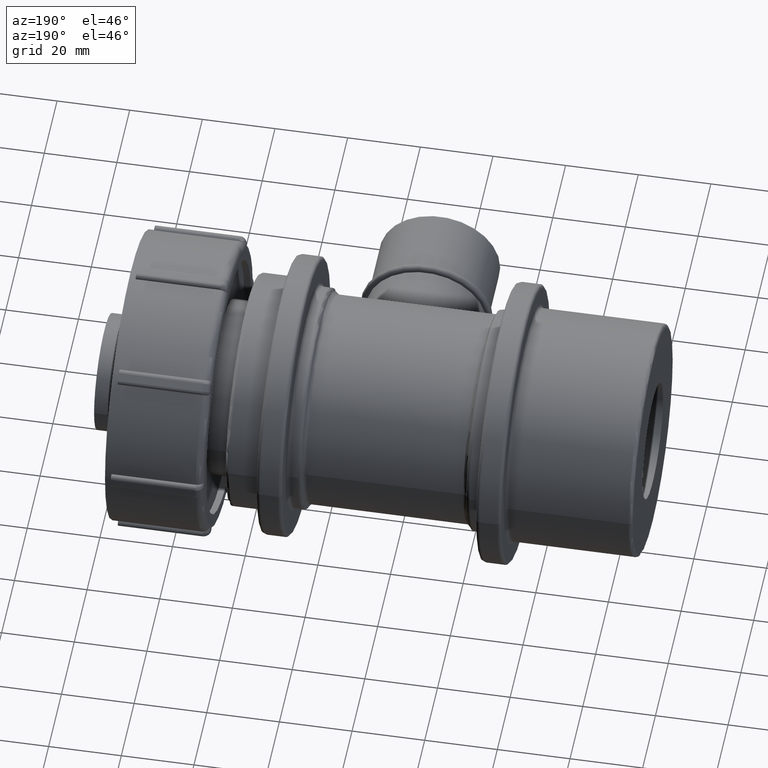
[diagram: clean part render]
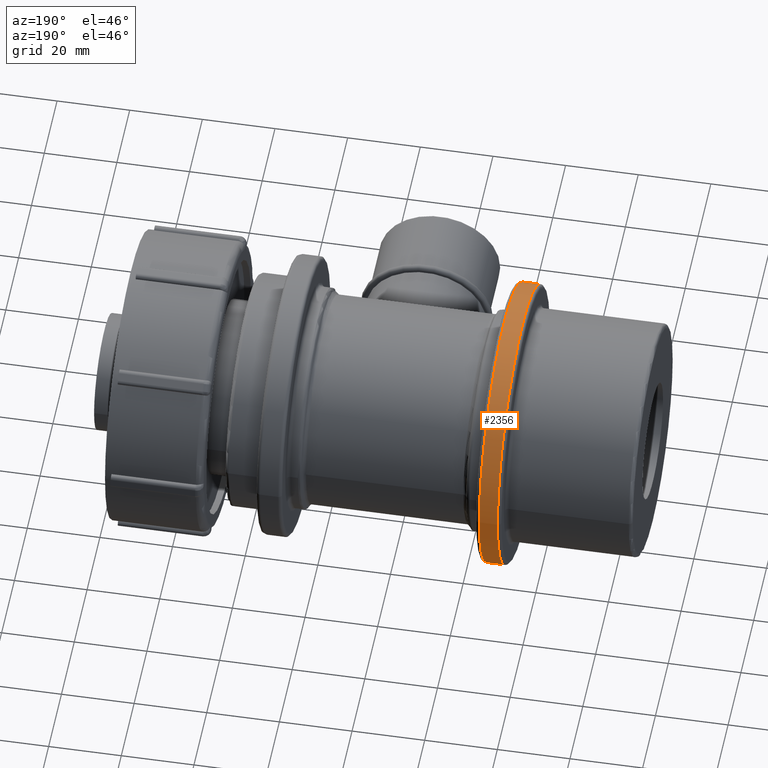
[diagram: same view with one face highlighted and labeled with its STEP entity id]
A machine part, auxiliary view. The second image highlights one B-rep face of the part: STEP entity #2356.
In plain terms, the highlighted cylindrical surface (bore or boss wall) has radius 38.4 mm, axis along (1, 0, 0).
Its self-contained STEP definition (entity closure, byte-faithful):
#313=CIRCLE('',#2533,38.4);
#314=CIRCLE('',#2535,38.4);
#526=FACE_BOUND('',#760,.T.);
#584=FACE_OUTER_BOUND('',#759,.T.);
#759=EDGE_LOOP('',(#1613));
#760=EDGE_LOOP('',(#1614));
#1031=VERTEX_POINT('',#3696);
#1032=VERTEX_POINT('',#3699);
#1263=EDGE_CURVE('',#1031,#1031,#313,.T.);
#1264=EDGE_CURVE('',#1032,#1032,#314,.T.);
#1613=ORIENTED_EDGE('',*,*,#1264,.F.);
#1614=ORIENTED_EDGE('',*,*,#1263,.F.);
#2289=CYLINDRICAL_SURFACE('',#2534,38.4);
#2356=ADVANCED_FACE('',(#584,#526),#2289,.T.);
#2533=AXIS2_PLACEMENT_3D('',#3697,#2872,#2873);
#2534=AXIS2_PLACEMENT_3D('',#3698,#2874,#2875);
#2535=AXIS2_PLACEMENT_3D('',#3700,#2876,#2877);
#2872=DIRECTION('center_axis',(-1.,0.,0.));
#2873=DIRECTION('ref_axis',(0.,-1.,1.83697019872103E-16));
#2874=DIRECTION('center_axis',(1.,0.,0.));
#2875=DIRECTION('ref_axis',(0.,1.,0.));
#2876=DIRECTION('center_axis',(1.,0.,0.));
#2877=DIRECTION('ref_axis',(0.,-1.,1.83697019872103E-16));
#3696=CARTESIAN_POINT('',(-32.7,38.4,-1.17566092718146E-14));
#3697=CARTESIAN_POINT('Origin',(-32.7,0.,0.));
#3698=CARTESIAN_POINT('Origin',(-30.2,0.,0.));
#3699=CARTESIAN_POINT('',(-27.7,38.4,-2.35132185436292E-15));
#3700=CARTESIAN_POINT('Origin',(-27.7,0.,0.));